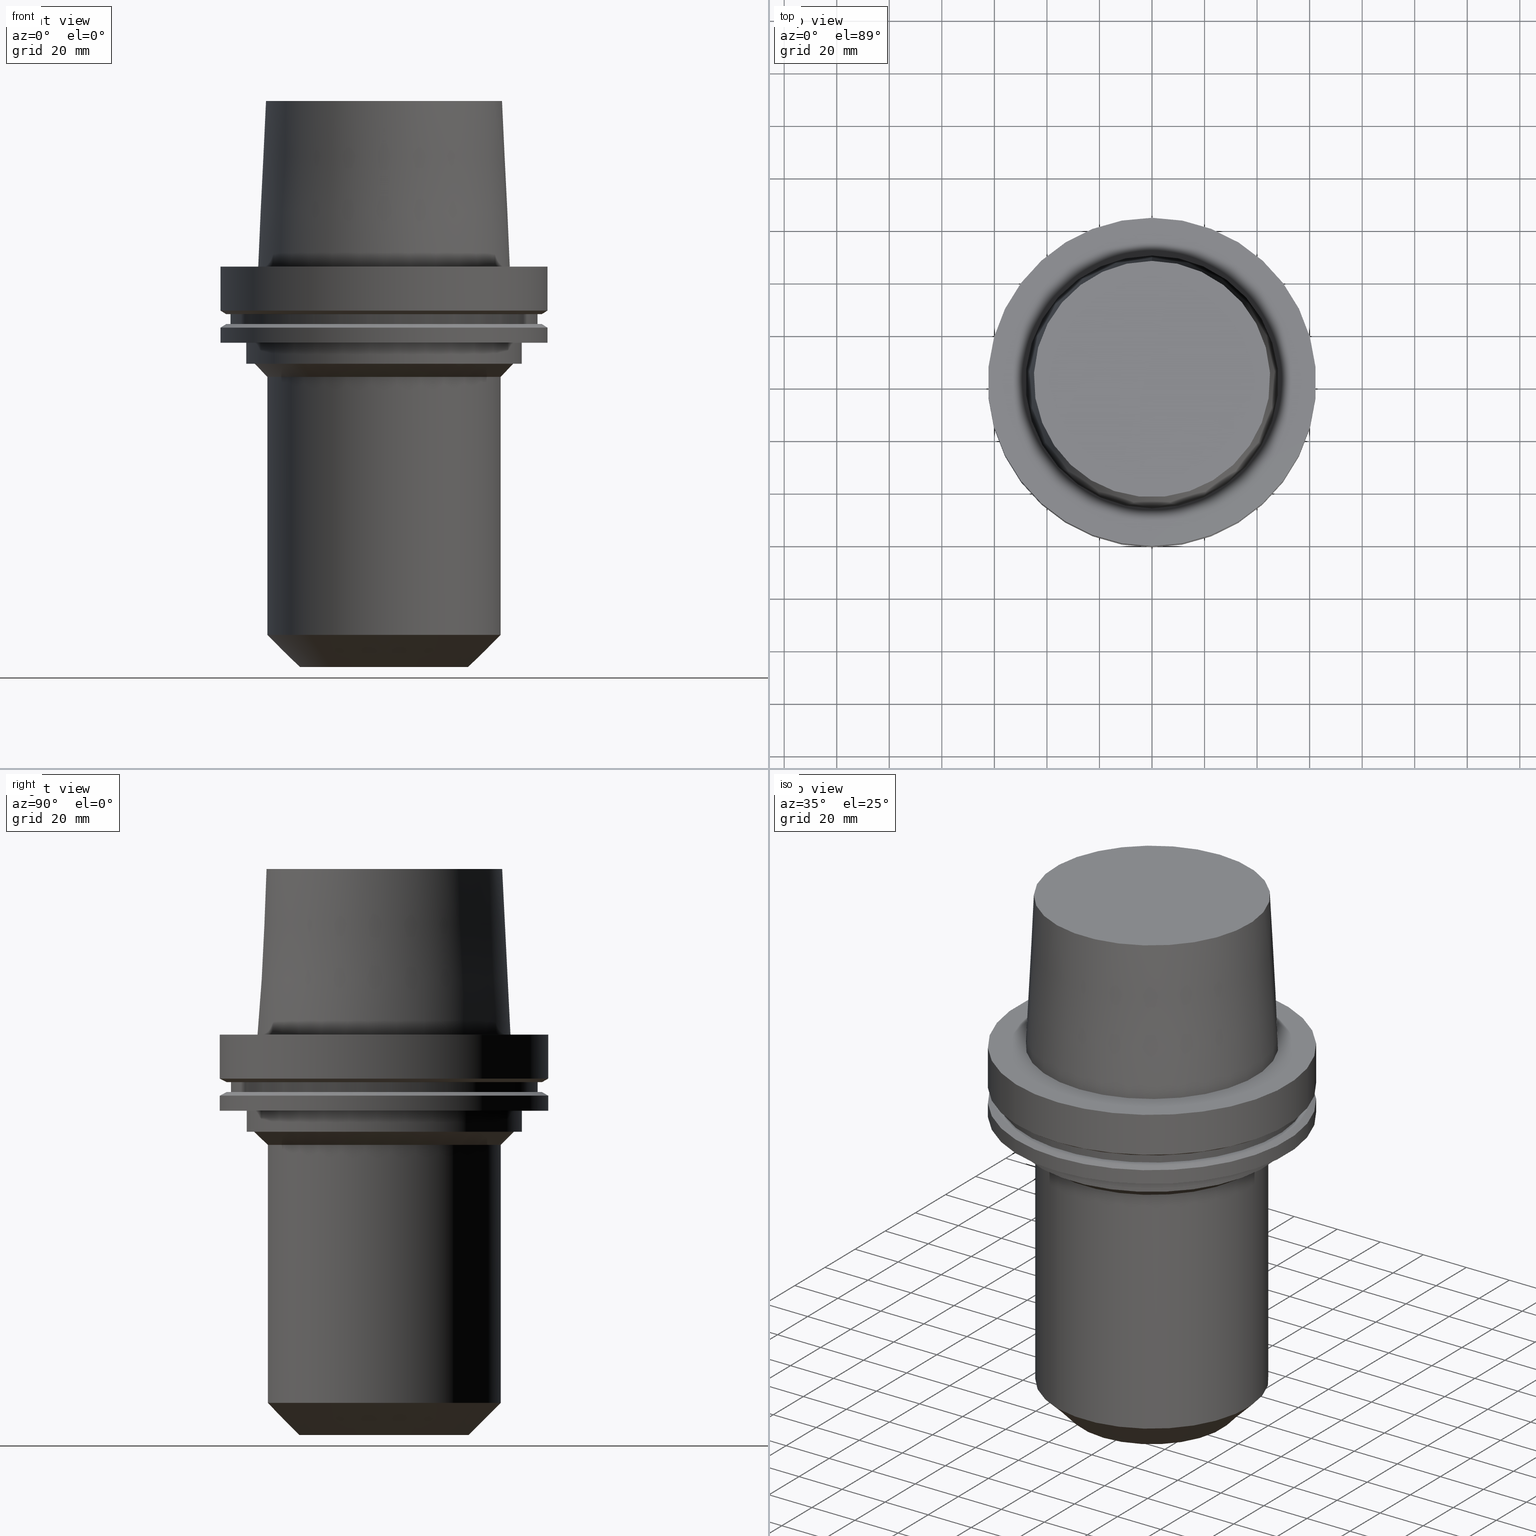
[diagram: canonical four-view strip — front | top / right | iso, engineering-drawing reading convention]
A machine part, canonical four-view strip (front | top / right | iso — engineering-drawing reading convention). The complete STEP part file that produces these views, byte-faithful:
ISO-10303-21;
HEADER;
FILE_DESCRIPTION((''),'1');
FILE_NAME('V:/02_3D_Field-HP\X2\FF71FF6FFF8CFF9F5916\X0\2013/02_Step_Field-HP\X2\FF71FF6FFF8CFF9F5916\X0\2013/HSK-A125-EM2.000-6.stp','2017-07-11T00:42:44',(''),(''),'Spatial Interop R21 SP3','Kubotek KeyCreator 2011 V10.0.2 (22737)',' ');
FILE_SCHEMA(('automotive_design'));
ENDSEC;
DATA;
#1=MECHANICAL_DESIGN_GEOMETRIC_PRESENTATION_REPRESENTATION(' ',(#10,#11,#12,#13,#14,#15,#16,#17,#18,#19,#20,#21,#22,#23,#24,#25,#26,#27,#28,#29,#30,#31,#32,#33,#34,#35,#36,#37,#38,#39,#40,#41,#42,#43),#6);
#2=PRODUCT_DEFINITION_CONTEXT('',#44,'design');
#3=APPLICATION_PROTOCOL_DEFINITION('INTERNATIONAL STANDARD','automotive_design',1994,#44);
#4=PRODUCT_CATEGORY_RELATIONSHIP('NONE','NONE',#45,#46);
#5=SHAPE_DEFINITION_REPRESENTATION(#47,#48);
#6= (GEOMETRIC_REPRESENTATION_CONTEXT(3)GLOBAL_UNCERTAINTY_ASSIGNED_CONTEXT((#51))GLOBAL_UNIT_ASSIGNED_CONTEXT((#53,#54,#55))REPRESENTATION_CONTEXT('NONE','WORKSPACE'));
#10=STYLED_ITEM('',(#57,#58),#59);
#11=STYLED_ITEM('',(#60),#61);
#12=STYLED_ITEM('',(#62),#63);
#13=STYLED_ITEM('',(#64),#65);
#14=STYLED_ITEM('',(#66,#67),#68);
#15=STYLED_ITEM('',(#69),#70);
#16=STYLED_ITEM('',(#71,#72),#73);
#17=STYLED_ITEM('',(#74),#75);
#18=STYLED_ITEM('',(#76,#77),#78);
#19=STYLED_ITEM('',(#79),#80);
#20=STYLED_ITEM('',(#81),#82);
#21=STYLED_ITEM('',(#83,#84),#85);
#22=STYLED_ITEM('',(#86),#87);
#23=STYLED_ITEM('',(#88,#89),#90);
#24=STYLED_ITEM('',(#91),#92);
#25=STYLED_ITEM('',(#93),#94);
#26=STYLED_ITEM('',(#95,#96),#97);
#27=STYLED_ITEM('',(#98,#99),#100);
#28=STYLED_ITEM('',(#101,#102),#103);
#29=STYLED_ITEM('',(#104,#105),#106);
#30=STYLED_ITEM('',(#107,#108),#109);
#31=STYLED_ITEM('',(#110),#111);
#32=STYLED_ITEM('',(#112,#113),#114);
#33=STYLED_ITEM('',(#115),#116);
#34=STYLED_ITEM('',(#117,#118),#119);
#35=STYLED_ITEM('',(#120,#121),#122);
#36=STYLED_ITEM('',(#123),#124);
#37=STYLED_ITEM('',(#125),#126);
#38=STYLED_ITEM('',(#127),#128);
#39=STYLED_ITEM('',(#129),#130);
#40=STYLED_ITEM('',(#131,#132),#133);
#41=STYLED_ITEM('',(#134,#135),#136);
#42=STYLED_ITEM('',(#137,#138),#139);
#43=STYLED_ITEM('',(#140,#141),#142);
#44=APPLICATION_CONTEXT(' ');
#45=PRODUCT_CATEGORY('part','NONE');
#46=PRODUCT_RELATED_PRODUCT_CATEGORY('detail',' ',(#143));
#47=PRODUCT_DEFINITION_SHAPE('NONE','NONE',#144);
#48=ADVANCED_BREP_SHAPE_REPRESENTATION('Unnamed[1]',(#59,#145),#6);
#51=UNCERTAINTY_MEASURE_WITH_UNIT(LENGTH_MEASURE(1.0E-006),#53,'','');
#53= (CONVERSION_BASED_UNIT('MILLIMETRE',#148)LENGTH_UNIT()NAMED_UNIT(#151));
#54= (NAMED_UNIT(#153)PLANE_ANGLE_UNIT()SI_UNIT($,.RADIAN.));
#55= (NAMED_UNIT(#153)SOLID_ANGLE_UNIT()SI_UNIT($,.STERADIAN.));
#57=PRESENTATION_STYLE_ASSIGNMENT((#159));
#58=PRESENTATION_STYLE_ASSIGNMENT((#160));
#59=MANIFOLD_SOLID_BREP('Unnamed[1]',#161);
#60=PRESENTATION_STYLE_ASSIGNMENT((#162));
#61=EDGE_CURVE('Unnamed[1]',#163,#163,#164,.T.);
#62=PRESENTATION_STYLE_ASSIGNMENT((#165));
#63=EDGE_CURVE('Unnamed[1]',#166,#166,#167,.T.);
#64=PRESENTATION_STYLE_ASSIGNMENT((#168));
#65=EDGE_CURVE('Unnamed[1]',#169,#169,#170,.T.);
#66=PRESENTATION_STYLE_ASSIGNMENT((#171));
#67=PRESENTATION_STYLE_ASSIGNMENT((#172));
#68=ADVANCED_FACE('Unnamed[1]',(#173,#174),#175,.T.);
#69=PRESENTATION_STYLE_ASSIGNMENT((#176));
#70=EDGE_CURVE('Unnamed[1]',#177,#177,#178,.T.);
#71=PRESENTATION_STYLE_ASSIGNMENT((#179));
#72=PRESENTATION_STYLE_ASSIGNMENT((#180));
#73=ADVANCED_FACE('Unnamed[1]',(#181,#182),#183,.T.);
#74=PRESENTATION_STYLE_ASSIGNMENT((#184));
#75=EDGE_CURVE('Unnamed[1]',#185,#185,#186,.T.);
#76=PRESENTATION_STYLE_ASSIGNMENT((#187));
#77=PRESENTATION_STYLE_ASSIGNMENT((#188));
#78=ADVANCED_FACE('Unnamed[1]',(#189,#190),#191,.T.);
#79=PRESENTATION_STYLE_ASSIGNMENT((#192));
#80=EDGE_CURVE('Unnamed[1]',#193,#193,#194,.T.);
#81=PRESENTATION_STYLE_ASSIGNMENT((#195));
#82=EDGE_CURVE('Unnamed[1]',#196,#196,#197,.T.);
#83=PRESENTATION_STYLE_ASSIGNMENT((#198));
#84=PRESENTATION_STYLE_ASSIGNMENT((#199));
#85=ADVANCED_FACE('Unnamed[1]',(#200,#201),#202,.T.);
#86=PRESENTATION_STYLE_ASSIGNMENT((#203));
#87=EDGE_CURVE('Unnamed[1]',#204,#204,#205,.T.);
#88=PRESENTATION_STYLE_ASSIGNMENT((#206));
#89=PRESENTATION_STYLE_ASSIGNMENT((#207));
#90=ADVANCED_FACE('Unnamed[1]',(#208,#209),#210,.T.);
#91=PRESENTATION_STYLE_ASSIGNMENT((#211));
#92=EDGE_CURVE('Unnamed[1]',#212,#212,#213,.T.);
#93=PRESENTATION_STYLE_ASSIGNMENT((#214));
#94=EDGE_CURVE('Unnamed[1]',#215,#215,#216,.T.);
#95=PRESENTATION_STYLE_ASSIGNMENT((#217));
#96=PRESENTATION_STYLE_ASSIGNMENT((#218));
#97=ADVANCED_FACE('Unnamed[1]',(#219,#220),#221,.T.);
#98=PRESENTATION_STYLE_ASSIGNMENT((#222));
#99=PRESENTATION_STYLE_ASSIGNMENT((#223));
#100=ADVANCED_FACE('Unnamed[1]',(#224,#225),#226,.T.);
#101=PRESENTATION_STYLE_ASSIGNMENT((#227));
#102=PRESENTATION_STYLE_ASSIGNMENT((#228));
#103=ADVANCED_FACE('Unnamed[1]',(#229,#230),#231,.T.);
#104=PRESENTATION_STYLE_ASSIGNMENT((#232));
#105=PRESENTATION_STYLE_ASSIGNMENT((#233));
#106=ADVANCED_FACE('Unnamed[1]',(#234,#235),#236,.T.);
#107=PRESENTATION_STYLE_ASSIGNMENT((#237));
#108=PRESENTATION_STYLE_ASSIGNMENT((#238));
#109=ADVANCED_FACE('Unnamed[1]',(#239,#240),#241,.T.);
#110=PRESENTATION_STYLE_ASSIGNMENT((#242));
#111=EDGE_CURVE('Unnamed[1]',#243,#243,#244,.T.);
#112=PRESENTATION_STYLE_ASSIGNMENT((#245));
#113=PRESENTATION_STYLE_ASSIGNMENT((#246));
#114=ADVANCED_FACE('Unnamed[1]',(#247),#248,.T.);
#115=PRESENTATION_STYLE_ASSIGNMENT((#249));
#116=EDGE_CURVE('Unnamed[1]',#250,#250,#251,.T.);
#117=PRESENTATION_STYLE_ASSIGNMENT((#252));
#118=PRESENTATION_STYLE_ASSIGNMENT((#253));
#119=ADVANCED_FACE('Unnamed[1]',(#254),#255,.T.);
#120=PRESENTATION_STYLE_ASSIGNMENT((#256));
#121=PRESENTATION_STYLE_ASSIGNMENT((#257));
#122=ADVANCED_FACE('Unnamed[1]',(#258,#259),#260,.T.);
#123=PRESENTATION_STYLE_ASSIGNMENT((#261));
#124=EDGE_CURVE('Unnamed[1]',#262,#262,#263,.T.);
#125=PRESENTATION_STYLE_ASSIGNMENT((#264));
#126=EDGE_CURVE('Unnamed[1]',#265,#265,#266,.T.);
#127=PRESENTATION_STYLE_ASSIGNMENT((#267));
#128=EDGE_CURVE('Unnamed[1]',#268,#268,#269,.T.);
#129=PRESENTATION_STYLE_ASSIGNMENT((#270));
#130=EDGE_CURVE('Unnamed[1]',#271,#271,#272,.T.);
#131=PRESENTATION_STYLE_ASSIGNMENT((#273));
#132=PRESENTATION_STYLE_ASSIGNMENT((#274));
#133=ADVANCED_FACE('Unnamed[1]',(#275,#276),#277,.T.);
#134=PRESENTATION_STYLE_ASSIGNMENT((#278));
#135=PRESENTATION_STYLE_ASSIGNMENT((#279));
#136=ADVANCED_FACE('Unnamed[1]',(#280,#281),#282,.T.);
#137=PRESENTATION_STYLE_ASSIGNMENT((#283));
#138=PRESENTATION_STYLE_ASSIGNMENT((#284));
#139=ADVANCED_FACE('Unnamed[1]',(#285,#286),#287,.T.);
#140=PRESENTATION_STYLE_ASSIGNMENT((#288));
#141=PRESENTATION_STYLE_ASSIGNMENT((#289));
#142=ADVANCED_FACE('Unnamed[1]',(#290,#291),#292,.T.);
#143=PRODUCT('Unnamed[1]','Unnamed[1]','PART-Unnamed[1]-DESC',(#293));
#144=PRODUCT_DEFINITION('NONE','NONE',#294,#2);
#145=AXIS2_PLACEMENT_3D('',#295,#296,#297);
#148=LENGTH_MEASURE_WITH_UNIT(LENGTH_MEASURE(1.0),#298);
#151=DIMENSIONAL_EXPONENTS(1.0,0.0,0.0,0.0,0.0,0.0,0.0);
#153=DIMENSIONAL_EXPONENTS(0.0,0.0,0.0,0.0,0.0,0.0,0.0);
#159=SURFACE_STYLE_USAGE(.BOTH.,#299);
#160=CURVE_STYLE('',#300,POSITIVE_LENGTH_MEASURE(1000.0),#301);
#161=CLOSED_SHELL('',(#119,#103,#73,#122,#85,#68,#97,#136,#139,#133,#78,#109,#90,#106,#142,#100,#114));
#162=CURVE_STYLE('',#302,POSITIVE_LENGTH_MEASURE(1000.0),#303);
#163=VERTEX_POINT('',#304);
#164=CIRCLE('',#305,62.5);
#165=CURVE_STYLE('',#306,POSITIVE_LENGTH_MEASURE(1000.0),#307);
#166=VERTEX_POINT('',#308);
#167=CIRCLE('',#309,32.2500000000003);
#168=CURVE_STYLE('',#310,POSITIVE_LENGTH_MEASURE(1000.0),#311);
#169=VERTEX_POINT('',#312);
#170=CIRCLE('',#313,62.5);
#171=SURFACE_STYLE_USAGE(.BOTH.,#314);
#172=CURVE_STYLE('',#315,POSITIVE_LENGTH_MEASURE(1000.0),#316);
#173=FACE_BOUND('',#317,.T.);
#174=FACE_OUTER_BOUND('',#318,.T.);
#175=PLANE('',#319);
#176=CURVE_STYLE('',#320,POSITIVE_LENGTH_MEASURE(1000.0),#321);
#177=VERTEX_POINT('',#322);
#178=CIRCLE('',#323,58.5);
#179=SURFACE_STYLE_USAGE(.BOTH.,#324);
#180=CURVE_STYLE('',#325,POSITIVE_LENGTH_MEASURE(1000.0),#326);
#181=FACE_OUTER_BOUND('',#327,.T.);
#182=FACE_BOUND('',#328,.T.);
#183=PLANE('',#329);
#184=CURVE_STYLE('',#330,POSITIVE_LENGTH_MEASURE(1000.0),#331);
#185=VERTEX_POINT('',#332);
#186=CIRCLE('',#333,60.1225952641912);
#187=SURFACE_STYLE_USAGE(.BOTH.,#334);
#188=CURVE_STYLE('',#335,POSITIVE_LENGTH_MEASURE(1000.0),#336);
#189=FACE_BOUND('',#337,.T.);
#190=FACE_OUTER_BOUND('',#338,.T.);
#191=PLANE('',#339);
#192=CURVE_STYLE('',#340,POSITIVE_LENGTH_MEASURE(1000.0),#341);
#193=VERTEX_POINT('',#342);
#194=CIRCLE('',#343,44.9779398797591);
#195=CURVE_STYLE('',#344,POSITIVE_LENGTH_MEASURE(1000.0),#345);
#196=VERTEX_POINT('',#346);
#197=CIRCLE('',#347,52.4999999999998);
#198=SURFACE_STYLE_USAGE(.BOTH.,#348);
#199=CURVE_STYLE('',#349,POSITIVE_LENGTH_MEASURE(1000.0),#350);
#200=FACE_BOUND('',#351,.T.);
#201=FACE_BOUND('',#352,.T.);
#202=CONICAL_SURFACE('',#353,61.3112976320956,1.04719755119668);
#203=CURVE_STYLE('',#354,POSITIVE_LENGTH_MEASURE(1000.0),#355);
#204=VERTEX_POINT('',#356);
#205=CIRCLE('',#357,62.5);
#206=SURFACE_STYLE_USAGE(.BOTH.,#358);
#207=CURVE_STYLE('',#359,POSITIVE_LENGTH_MEASURE(1000.0),#360);
#208=FACE_BOUND('',#361,.T.);
#209=FACE_OUTER_BOUND('',#362,.T.);
#210=PLANE('',#363);
#211=CURVE_STYLE('',#364,POSITIVE_LENGTH_MEASURE(1000.0),#365);
#212=VERTEX_POINT('',#366);
#213=CIRCLE('',#367,60.122595264194);
#214=CURVE_STYLE('',#368,POSITIVE_LENGTH_MEASURE(1000.0),#369);
#215=VERTEX_POINT('',#370);
#216=CIRCLE('',#371,49.4499999999999);
#217=SURFACE_STYLE_USAGE(.BOTH.,#372);
#218=CURVE_STYLE('',#373,POSITIVE_LENGTH_MEASURE(1000.0),#374);
#219=FACE_BOUND('',#375,.T.);
#220=FACE_BOUND('',#376,.T.);
#221=CYLINDRICAL_SURFACE('',#377,58.4999999999999);
#222=SURFACE_STYLE_USAGE(.BOTH.,#378);
#223=CURVE_STYLE('',#379,POSITIVE_LENGTH_MEASURE(1000.0),#380);
#224=FACE_BOUND('',#381,.T.);
#225=FACE_BOUND('',#382,.T.);
#226=CONICAL_SURFACE('',#383,38.3500000000003,0.785398163397445);
#227=SURFACE_STYLE_USAGE(.BOTH.,#384);
#228=CURVE_STYLE('',#385,POSITIVE_LENGTH_MEASURE(1000.0),#386);
#229=FACE_BOUND('',#387,.T.);
#230=FACE_BOUND('',#388,.T.);
#231=CONICAL_SURFACE('',#389,46.5560961923844,0.0500583457465964);
#232=SURFACE_STYLE_USAGE(.BOTH.,#390);
#233=CURVE_STYLE('',#391,POSITIVE_LENGTH_MEASURE(1000.0),#392);
#234=FACE_BOUND('',#393,.T.);
#235=FACE_BOUND('',#394,.T.);
#236=CONICAL_SURFACE('',#395,46.95,0.785398163397456);
#237=SURFACE_STYLE_USAGE(.BOTH.,#396);
#238=CURVE_STYLE('',#397,POSITIVE_LENGTH_MEASURE(1000.0),#398);
#239=FACE_BOUND('',#399,.T.);
#240=FACE_BOUND('',#400,.T.);
#241=CYLINDRICAL_SURFACE('',#401,52.5);
#242=CURVE_STYLE('',#402,POSITIVE_LENGTH_MEASURE(1000.0),#403);
#243=VERTEX_POINT('',#404);
#244=CIRCLE('',#405,58.4999999999998);
#245=SURFACE_STYLE_USAGE(.BOTH.,#406);
#246=CURVE_STYLE('',#407,POSITIVE_LENGTH_MEASURE(1000.0),#408);
#247=FACE_OUTER_BOUND('',#409,.T.);
#248=PLANE('',#410);
#249=CURVE_STYLE('',#411,POSITIVE_LENGTH_MEASURE(1000.0),#412);
#250=VERTEX_POINT('',#413);
#251=CIRCLE('',#414,44.4500000000002);
#252=SURFACE_STYLE_USAGE(.BOTH.,#415);
#253=CURVE_STYLE('',#416,POSITIVE_LENGTH_MEASURE(1000.0),#417);
#254=FACE_OUTER_BOUND('',#418,.T.);
#255=PLANE('',#419);
#256=SURFACE_STYLE_USAGE(.BOTH.,#420);
#257=CURVE_STYLE('',#421,POSITIVE_LENGTH_MEASURE(1000.0),#422);
#258=FACE_BOUND('',#423,.T.);
#259=FACE_BOUND('',#424,.T.);
#260=CYLINDRICAL_SURFACE('',#425,62.5000000000001);
#261=CURVE_STYLE('',#426,POSITIVE_LENGTH_MEASURE(1000.0),#427);
#262=VERTEX_POINT('',#428);
#263=CIRCLE('',#429,48.1342525050097);
#264=CURVE_STYLE('',#430,POSITIVE_LENGTH_MEASURE(1000.0),#431);
#265=VERTEX_POINT('',#432);
#266=CIRCLE('',#433,52.5000000000003);
#267=CURVE_STYLE('',#434,POSITIVE_LENGTH_MEASURE(1000.0),#435);
#268=VERTEX_POINT('',#436);
#269=CIRCLE('',#437,44.4500000000003);
#270=CURVE_STYLE('',#438,POSITIVE_LENGTH_MEASURE(1000.0),#439);
#271=VERTEX_POINT('',#440);
#272=CIRCLE('',#441,62.5000000000002);
#273=SURFACE_STYLE_USAGE(.BOTH.,#442);
#274=CURVE_STYLE('',#443,POSITIVE_LENGTH_MEASURE(1000.0),#444);
#275=FACE_BOUND('',#445,.T.);
#276=FACE_BOUND('',#446,.T.);
#277=CYLINDRICAL_SURFACE('',#447,62.5);
#278=SURFACE_STYLE_USAGE(.BOTH.,#448);
#279=CURVE_STYLE('',#449,POSITIVE_LENGTH_MEASURE(1000.0),#450);
#280=FACE_OUTER_BOUND('',#451,.T.);
#281=FACE_BOUND('',#452,.T.);
#282=PLANE('',#453);
#283=SURFACE_STYLE_USAGE(.BOTH.,#454);
#284=CURVE_STYLE('',#455,POSITIVE_LENGTH_MEASURE(1000.0),#456);
#285=FACE_BOUND('',#457,.T.);
#286=FACE_BOUND('',#458,.T.);
#287=CONICAL_SURFACE('',#459,61.311297632097,1.04719755119646);
#288=SURFACE_STYLE_USAGE(.BOTH.,#460);
#289=CURVE_STYLE('',#461,POSITIVE_LENGTH_MEASURE(1000.0),#462);
#290=FACE_BOUND('',#463,.T.);
#291=FACE_BOUND('',#464,.T.);
#292=CYLINDRICAL_SURFACE('',#465,44.4500000000002);
#293=PRODUCT_CONTEXT('',#44,'mechanical');
#294=PRODUCT_DEFINITION_FORMATION_WITH_SPECIFIED_SOURCE(' ','NONE',#143,.NOT_KNOWN.);
#295=CARTESIAN_POINT('',(0.0,0.0,0.0));
#296=DIRECTION('',(0.0,0.0,1.0));
#297=DIRECTION('',(1.0,0.0,0.0));
#298= (NAMED_UNIT(#151)LENGTH_UNIT()SI_UNIT(.MILLI.,.METRE.));
#299=SURFACE_SIDE_STYLE('',(#467));
#300=DRAUGHTING_PRE_DEFINED_CURVE_FONT('continuous');
#301=COLOUR_RGB('',0.0,1.0,0.0);
#302=DRAUGHTING_PRE_DEFINED_CURVE_FONT('continuous');
#303=COLOUR_RGB('',0.0,1.0,0.0);
#304=CARTESIAN_POINT('',(1.77573785876367E-015,62.5,-29.0000000000001));
#305=AXIS2_PLACEMENT_3D('',#468,#469,#470);
#306=DRAUGHTING_PRE_DEFINED_CURVE_FONT('continuous');
#307=COLOUR_RGB('',0.0,1.0,0.0);
#308=CARTESIAN_POINT('',(9.33180860950283E-015,32.2500000000004,-152.4));
#309=AXIS2_PLACEMENT_3D('',#471,#472,#473);
#310=DRAUGHTING_PRE_DEFINED_CURVE_FONT('continuous');
#311=COLOUR_RGB('',0.0,1.0,0.0);
#312=CARTESIAN_POINT('',(1.02578894188644E-015,62.5,-16.7524047358084));
#313=AXIS2_PLACEMENT_3D('',#474,#475,#476);
#314=SURFACE_SIDE_STYLE('',(#477));
#315=DRAUGHTING_PRE_DEFINED_CURVE_FONT('continuous');
#316=COLOUR_RGB('',0.0,1.0,0.0);
#317=EDGE_LOOP('',(#478));
#318=EDGE_LOOP('',(#479));
#319=AXIS2_PLACEMENT_3D('',#480,#481,#482);
#320=DRAUGHTING_PRE_DEFINED_CURVE_FONT('continuous');
#321=COLOUR_RGB('',0.0,1.0,0.0);
#322=CARTESIAN_POINT('',(1.10983616172739E-015,58.5,-18.1250000000017));
#323=AXIS2_PLACEMENT_3D('',#483,#484,#485);
#324=SURFACE_SIDE_STYLE('',(#486));
#325=DRAUGHTING_PRE_DEFINED_CURVE_FONT('continuous');
#326=COLOUR_RGB('',0.0,1.0,0.0);
#327=EDGE_LOOP('',(#487));
#328=EDGE_LOOP('',(#488));
#329=AXIS2_PLACEMENT_3D('',#489,#490,#491);
#330=DRAUGHTING_PRE_DEFINED_CURVE_FONT('continuous');
#331=COLOUR_RGB('',0.0,1.0,0.0);
#332=CARTESIAN_POINT('',(1.10983616172729E-015,60.1225952641912,-18.1250000000001));
#333=AXIS2_PLACEMENT_3D('',#492,#493,#494);
#334=SURFACE_SIDE_STYLE('',(#495));
#335=DRAUGHTING_PRE_DEFINED_CURVE_FONT('continuous');
#336=COLOUR_RGB('',0.0,1.0,0.0);
#337=EDGE_LOOP('',(#496));
#338=EDGE_LOOP('',(#497));
#339=AXIS2_PLACEMENT_3D('',#498,#499,#500);
#340=DRAUGHTING_PRE_DEFINED_CURVE_FONT('continuous');
#341=COLOUR_RGB('',0.0,1.0,0.0);
#342=CARTESIAN_POINT('',(-3.85763741731416E-015,44.9779398797591,62.9999999999999));
#343=AXIS2_PLACEMENT_3D('',#501,#502,#503);
#344=DRAUGHTING_PRE_DEFINED_CURVE_FONT('continuous');
#345=COLOUR_RGB('',0.0,1.0,0.0);
#346=CARTESIAN_POINT('',(2.26559657842261E-015,52.4999999999998,-37.0000000000001));
#347=AXIS2_PLACEMENT_3D('',#504,#505,#506);
#348=SURFACE_SIDE_STYLE('',(#507));
#349=DRAUGHTING_PRE_DEFINED_CURVE_FONT('continuous');
#350=COLOUR_RGB('',0.0,1.0,0.0);
#351=EDGE_LOOP('',(#508));
#352=EDGE_LOOP('',(#509));
#353=AXIS2_PLACEMENT_3D('',#510,#511,#512);
#354=DRAUGHTING_PRE_DEFINED_CURVE_FONT('continuous');
#355=COLOUR_RGB('',0.0,1.0,0.0);
#356=CARTESIAN_POINT('',(1.42350465640827E-015,62.5,-23.2475952641916));
#357=AXIS2_PLACEMENT_3D('',#513,#514,#515);
#358=SURFACE_SIDE_STYLE('',(#516));
#359=DRAUGHTING_PRE_DEFINED_CURVE_FONT('continuous');
#360=COLOUR_RGB('',0.0,1.0,0.0);
#361=EDGE_LOOP('',(#517));
#362=EDGE_LOOP('',(#518));
#363=AXIS2_PLACEMENT_3D('',#519,#520,#521);
#364=DRAUGHTING_PRE_DEFINED_CURVE_FONT('continuous');
#365=COLOUR_RGB('',0.0,1.0,0.0);
#366=CARTESIAN_POINT('',(1.33945743656747E-015,60.122595264194,-21.8750000000009));
#367=AXIS2_PLACEMENT_3D('',#522,#523,#524);
#368=DRAUGHTING_PRE_DEFINED_CURVE_FONT('continuous');
#369=COLOUR_RGB('',0.0,1.0,0.0);
#370=CARTESIAN_POINT('',(2.26559657842261E-015,49.4499999999999,-37.0000000000001));
#371=AXIS2_PLACEMENT_3D('',#525,#526,#527);
#372=SURFACE_SIDE_STYLE('',(#528));
#373=DRAUGHTING_PRE_DEFINED_CURVE_FONT('continuous');
#374=COLOUR_RGB('',0.0,1.0,0.0);
#375=EDGE_LOOP('',(#529));
#376=EDGE_LOOP('',(#530));
#377=AXIS2_PLACEMENT_3D('',#531,#532,#533);
#378=SURFACE_SIDE_STYLE('',(#534));
#379=DRAUGHTING_PRE_DEFINED_CURVE_FONT('continuous');
#380=COLOUR_RGB('',0.0,1.0,0.0);
#381=EDGE_LOOP('',(#535));
#382=EDGE_LOOP('',(#536));
#383=AXIS2_PLACEMENT_3D('',#537,#538,#539);
#384=SURFACE_SIDE_STYLE('',(#540));
#385=DRAUGHTING_PRE_DEFINED_CURVE_FONT('continuous');
#386=COLOUR_RGB('',0.0,1.0,0.0);
#387=EDGE_LOOP('',(#541));
#388=EDGE_LOOP('',(#542));
#389=AXIS2_PLACEMENT_3D('',#543,#544,#545);
#390=SURFACE_SIDE_STYLE('',(#546));
#391=DRAUGHTING_PRE_DEFINED_CURVE_FONT('continuous');
#392=COLOUR_RGB('',0.0,1.0,0.0);
#393=EDGE_LOOP('',(#547));
#394=EDGE_LOOP('',(#548));
#395=AXIS2_PLACEMENT_3D('',#549,#550,#551);
#396=SURFACE_SIDE_STYLE('',(#552));
#397=DRAUGHTING_PRE_DEFINED_CURVE_FONT('continuous');
#398=COLOUR_RGB('',0.0,1.0,0.0);
#399=EDGE_LOOP('',(#553));
#400=EDGE_LOOP('',(#554));
#401=AXIS2_PLACEMENT_3D('',#555,#556,#557);
#402=DRAUGHTING_PRE_DEFINED_CURVE_FONT('continuous');
#403=COLOUR_RGB('',0.0,1.0,0.0);
#404=CARTESIAN_POINT('',(1.33945743656732E-015,58.4999999999998,-21.8749999999984));
#405=AXIS2_PLACEMENT_3D('',#558,#559,#560);
#406=SURFACE_SIDE_STYLE('',(#561));
#407=DRAUGHTING_PRE_DEFINED_CURVE_FONT('continuous');
#408=COLOUR_RGB('',0.0,1.0,0.0);
#409=EDGE_LOOP('',(#562));
#410=AXIS2_PLACEMENT_3D('',#563,#564,#565);
#411=DRAUGHTING_PRE_DEFINED_CURVE_FONT('continuous');
#412=COLOUR_RGB('',0.0,1.0,0.0);
#413=CARTESIAN_POINT('',(2.57175827820943E-015,44.4500000000002,-41.9999999999998));
#414=AXIS2_PLACEMENT_3D('',#566,#567,#568);
#415=SURFACE_SIDE_STYLE('',(#569));
#416=DRAUGHTING_PRE_DEFINED_CURVE_FONT('continuous');
#417=COLOUR_RGB('',0.0,1.0,0.0);
#418=EDGE_LOOP('',(#570));
#419=AXIS2_PLACEMENT_3D('',#571,#572,#573);
#420=SURFACE_SIDE_STYLE('',(#574));
#421=DRAUGHTING_PRE_DEFINED_CURVE_FONT('continuous');
#422=COLOUR_RGB('',0.0,1.0,0.0);
#423=EDGE_LOOP('',(#575));
#424=EDGE_LOOP('',(#576));
#425=AXIS2_PLACEMENT_3D('',#577,#578,#579);
#426=DRAUGHTING_PRE_DEFINED_CURVE_FONT('continuous');
#427=COLOUR_RGB('',0.0,1.0,0.0);
#428=CARTESIAN_POINT('',(3.88342032297484E-029,48.1342525050097,-6.38005254174039E-013));
#429=AXIS2_PLACEMENT_3D('',#580,#581,#582);
#430=DRAUGHTING_PRE_DEFINED_CURVE_FONT('continuous');
#431=COLOUR_RGB('',0.0,1.0,0.0);
#432=CARTESIAN_POINT('',(1.77573785876367E-015,52.5000000000003,-29.0000000000001));
#433=AXIS2_PLACEMENT_3D('',#583,#584,#585);
#434=DRAUGHTING_PRE_DEFINED_CURVE_FONT('continuous');
#435=COLOUR_RGB('',0.0,1.0,0.0);
#436=CARTESIAN_POINT('',(8.58477406202295E-015,44.4500000000003,-140.2));
#437=AXIS2_PLACEMENT_3D('',#586,#587,#588);
#438=DRAUGHTING_PRE_DEFINED_CURVE_FONT('continuous');
#439=COLOUR_RGB('',0.0,1.0,0.0);
#440=CARTESIAN_POINT('',(-5.58935713239973E-030,62.5000000000002,8.63540424946709E-014));
#441=AXIS2_PLACEMENT_3D('',#589,#590,#591);
#442=SURFACE_SIDE_STYLE('',(#592));
#443=DRAUGHTING_PRE_DEFINED_CURVE_FONT('continuous');
#444=COLOUR_RGB('',0.0,1.0,0.0);
#445=EDGE_LOOP('',(#593));
#446=EDGE_LOOP('',(#594));
#447=AXIS2_PLACEMENT_3D('',#595,#596,#597);
#448=SURFACE_SIDE_STYLE('',(#598));
#449=DRAUGHTING_PRE_DEFINED_CURVE_FONT('continuous');
#450=COLOUR_RGB('',0.0,1.0,0.0);
#451=EDGE_LOOP('',(#599));
#452=EDGE_LOOP('',(#600));
#453=AXIS2_PLACEMENT_3D('',#601,#602,#603);
#454=SURFACE_SIDE_STYLE('',(#604));
#455=DRAUGHTING_PRE_DEFINED_CURVE_FONT('continuous');
#456=COLOUR_RGB('',0.0,1.0,0.0);
#457=EDGE_LOOP('',(#605));
#458=EDGE_LOOP('',(#606));
#459=AXIS2_PLACEMENT_3D('',#607,#608,#609);
#460=SURFACE_SIDE_STYLE('',(#610));
#461=DRAUGHTING_PRE_DEFINED_CURVE_FONT('continuous');
#462=COLOUR_RGB('',0.0,1.0,0.0);
#463=EDGE_LOOP('',(#611));
#464=EDGE_LOOP('',(#612));
#465=AXIS2_PLACEMENT_3D('',#613,#614,#615);
#467=SURFACE_STYLE_FILL_AREA(#616);
#468=CARTESIAN_POINT('',(1.77573785876367E-015,3.55147571752733E-015,-29.0000000000001));
#469=DIRECTION('',(6.12323399573677E-017,1.22464679914723E-016,-1.0));
#470=DIRECTION('',(-1.23259516440783E-032,1.0,1.22464679914723E-016));
#471=CARTESIAN_POINT('',(9.33180860950283E-015,1.86636172190057E-014,-152.4));
#472=DIRECTION('',(6.12323399573676E-017,1.22464679914704E-016,-1.0));
#473=DIRECTION('',(-1.23259516440782E-032,1.0,1.22464679914704E-016));
#474=CARTESIAN_POINT('',(1.02578894188644E-015,2.05157788377287E-015,-16.7524047358084));
#475=DIRECTION('',(6.12323399573676E-017,1.22464679914723E-016,-1.0));
#476=DIRECTION('',(-1.23259516440783E-032,1.0,1.22464679914723E-016));
#477=SURFACE_STYLE_FILL_AREA(#617);
#478=ORIENTED_EDGE('',*,*,#70,.F.);
#479=ORIENTED_EDGE('',*,*,#75,.T.);
#480=CARTESIAN_POINT('',(1.10983616172734E-015,59.3112976320956,-18.1250000000009));
#481=DIRECTION('',(6.12323399573677E-017,9.85408931824386E-013,-1.0));
#482=DIRECTION('',(-6.03437218632281E-029,1.0,9.85408931824386E-013));
#483=CARTESIAN_POINT('',(1.10983616172739E-015,2.21967232345478E-015,-18.1250000000017));
#484=DIRECTION('',(6.12323399573677E-017,1.22464679914762E-016,-1.0));
#485=DIRECTION('',(-1.23259516440783E-032,1.0,1.22464679914762E-016));
#486=SURFACE_STYLE_FILL_AREA(#618);
#487=ORIENTED_EDGE('',*,*,#130,.F.);
#488=ORIENTED_EDGE('',*,*,#124,.T.);
#489=CARTESIAN_POINT('',(1.66224230486744E-029,55.317126252505,-2.75825605839684E-013));
#490=DIRECTION('',(-6.12323399573677E-017,-5.04226666187264E-014,1.0));
#491=DIRECTION('',(3.09232501668564E-030,-1.0,-5.04226666187264E-014));
#492=CARTESIAN_POINT('',(1.10983616172729E-015,2.21967232345459E-015,-18.1250000000001));
#493=DIRECTION('',(6.12323399573677E-017,1.22464679914743E-016,-1.0));
#494=DIRECTION('',(-1.23259516440797E-032,1.0,1.22464679914743E-016));
#495=SURFACE_STYLE_FILL_AREA(#619);
#496=ORIENTED_EDGE('',*,*,#126,.F.);
#497=ORIENTED_EDGE('',*,*,#61,.T.);
#498=CARTESIAN_POINT('',(1.77573785876367E-015,57.5000000000001,-29.0000000000001));
#499=DIRECTION('',(6.12323399573677E-017,1.22464679914735E-016,-1.0));
#500=DIRECTION('',(-1.23259516440783E-032,1.0,1.22464679914735E-016));
#501=CARTESIAN_POINT('',(-3.85763741731416E-015,-7.71527483462831E-015,62.9999999999999));
#502=DIRECTION('',(6.12323399573677E-017,1.22464679914791E-016,-1.0));
#503=DIRECTION('',(-1.23259516440771E-032,1.0,1.22464679914791E-016));
#504=CARTESIAN_POINT('',(2.26559657842261E-015,4.53119315684522E-015,-37.0000000000001));
#505=DIRECTION('',(6.12323399573677E-017,1.22464679914709E-016,-1.0));
#506=DIRECTION('',(-1.23259516440784E-032,1.0,1.22464679914709E-016));
#507=SURFACE_STYLE_FILL_AREA(#620);
#508=ORIENTED_EDGE('',*,*,#75,.F.);
#509=ORIENTED_EDGE('',*,*,#65,.T.);
#510=CARTESIAN_POINT('',(1.06781255180686E-015,2.13562510361373E-015,-17.4387023679042));
#511=DIRECTION('',(-6.12323399573676E-017,-1.22464679914786E-016,1.0));
#512=DIRECTION('',(-1.23259516440761E-032,1.0,1.22464679914786E-016));
#513=CARTESIAN_POINT('',(1.42350465640827E-015,2.84700931281654E-015,-23.2475952641916));
#514=DIRECTION('',(6.12323399573677E-017,1.22464679914723E-016,-1.0));
#515=DIRECTION('',(-1.23259516440783E-032,1.0,1.22464679914723E-016));
#516=SURFACE_STYLE_FILL_AREA(#621);
#517=ORIENTED_EDGE('',*,*,#94,.F.);
#518=ORIENTED_EDGE('',*,*,#82,.T.);
#519=CARTESIAN_POINT('',(2.26559657842261E-015,50.9749999999999,-37.0000000000001));
#520=DIRECTION('',(6.12323399573677E-017,1.22464679914735E-016,-1.0));
#521=DIRECTION('',(-1.23259516440783E-032,1.0,1.22464679914735E-016));
#522=CARTESIAN_POINT('',(1.33945743656747E-015,2.67891487313494E-015,-21.8750000000009));
#523=DIRECTION('',(6.12323399573677E-017,1.22464679914738E-016,-1.0));
#524=DIRECTION('',(-1.23259516440791E-032,1.0,1.22464679914738E-016));
#525=CARTESIAN_POINT('',(2.26559657842261E-015,4.53119315684522E-015,-37.0000000000001));
#526=DIRECTION('',(6.12323399573677E-017,1.22464679914697E-016,-1.0));
#527=DIRECTION('',(-1.23259516440812E-032,1.0,1.22464679914697E-016));
#528=SURFACE_STYLE_FILL_AREA(#622);
#529=ORIENTED_EDGE('',*,*,#111,.F.);
#530=ORIENTED_EDGE('',*,*,#70,.T.);
#531=CARTESIAN_POINT('',(1.22464679914736E-015,2.44929359829471E-015,-20.0));
#532=DIRECTION('',(6.12323399573677E-017,1.22464679914762E-016,-1.0));
#533=DIRECTION('',(-1.23259516440783E-032,1.0,1.22464679914762E-016));
#534=SURFACE_STYLE_FILL_AREA(#623);
#535=ORIENTED_EDGE('',*,*,#63,.F.);
#536=ORIENTED_EDGE('',*,*,#128,.T.);
#537=CARTESIAN_POINT('',(8.95829133576289E-015,1.79165826715258E-014,-146.3));
#538=DIRECTION('',(-6.12323399573677E-017,-1.22464679914735E-016,1.0));
#539=DIRECTION('',(-1.23259516440801E-032,1.0,1.22464679914735E-016));
#540=SURFACE_STYLE_FILL_AREA(#624);
#541=ORIENTED_EDGE('',*,*,#124,.F.);
#542=ORIENTED_EDGE('',*,*,#80,.T.);
#543=CARTESIAN_POINT('',(-1.92881870865706E-015,-3.85763741731412E-015,31.4999999999996));
#544=DIRECTION('',(6.12323399573676E-017,1.22464679914697E-016,-1.0));
#545=DIRECTION('',(-1.23259516440801E-032,1.0,1.22464679914697E-016));
#546=SURFACE_STYLE_FILL_AREA(#625);
#547=ORIENTED_EDGE('',*,*,#116,.F.);
#548=ORIENTED_EDGE('',*,*,#94,.T.);
#549=CARTESIAN_POINT('',(2.41867742831602E-015,4.83735485663204E-015,-39.4999999999999));
#550=DIRECTION('',(-6.12323399573677E-017,-1.22464679914794E-016,1.0));
#551=DIRECTION('',(-1.23259516440814E-032,1.0,1.22464679914794E-016));
#552=SURFACE_STYLE_FILL_AREA(#626);
#553=ORIENTED_EDGE('',*,*,#82,.F.);
#554=ORIENTED_EDGE('',*,*,#126,.T.);
#555=CARTESIAN_POINT('',(2.02066721859314E-015,4.04133443718627E-015,-33.0000000000001));
#556=DIRECTION('',(6.12323399573677E-017,1.22464679914708E-016,-1.0));
#557=DIRECTION('',(-1.23259516440783E-032,1.0,1.22464679914708E-016));
#558=CARTESIAN_POINT('',(1.33945743656732E-015,2.67891487313464E-015,-21.8749999999984));
#559=DIRECTION('',(6.12323399573677E-017,1.22464679914763E-016,-1.0));
#560=DIRECTION('',(-1.23259516440784E-032,1.0,1.22464679914763E-016));
#561=SURFACE_STYLE_FILL_AREA(#627);
#562=ORIENTED_EDGE('',*,*,#63,.T.);
#563=CARTESIAN_POINT('',(9.33180860950283E-015,16.1250000000002,-152.4));
#564=DIRECTION('',(6.12323399573677E-017,1.22464679914735E-016,-1.0));
#565=DIRECTION('',(-1.23259516440783E-032,1.0,1.22464679914735E-016));
#566=CARTESIAN_POINT('',(2.57175827820943E-015,5.14351655641885E-015,-41.9999999999998));
#567=DIRECTION('',(6.12323399573677E-017,1.22464679914757E-016,-1.0));
#568=DIRECTION('',(-1.23259516440815E-032,1.0,1.22464679914757E-016));
#569=SURFACE_STYLE_FILL_AREA(#628);
#570=ORIENTED_EDGE('',*,*,#80,.F.);
#571=CARTESIAN_POINT('',(-3.85763741731416E-015,22.4889699398795,62.9999999999999));
#572=DIRECTION('',(-6.12323399573677E-017,-1.22464679914735E-016,1.0));
#573=DIRECTION('',(1.23259516440783E-032,-1.0,-1.22464679914735E-016));
#574=SURFACE_STYLE_FILL_AREA(#629);
#575=ORIENTED_EDGE('',*,*,#65,.F.);
#576=ORIENTED_EDGE('',*,*,#130,.T.);
#577=CARTESIAN_POINT('',(5.12894470943216E-016,1.02578894188643E-015,-8.37620236790417));
#578=DIRECTION('',(6.12323399573677E-017,1.22464679914723E-016,-1.0));
#579=DIRECTION('',(-1.23259516440783E-032,1.0,1.22464679914723E-016));
#580=CARTESIAN_POINT('',(4.00275388022765E-029,8.00550776045529E-029,-6.53699316899292E-013));
#581=DIRECTION('',(6.12323399573677E-017,1.22464679914742E-016,-1.0));
#582=DIRECTION('',(-1.23259516440755E-032,1.0,1.22464679914742E-016));
#583=CARTESIAN_POINT('',(1.77573785876367E-015,3.55147571752733E-015,-29.0000000000001));
#584=DIRECTION('',(6.12323399573677E-017,1.22464679914708E-016,-1.0));
#585=DIRECTION('',(-1.23259516440782E-032,1.0,1.22464679914708E-016));
#586=CARTESIAN_POINT('',(8.58477406202295E-015,1.71695481240459E-014,-140.2));
#587=DIRECTION('',(6.12323399573677E-017,1.22464679914757E-016,-1.0));
#588=DIRECTION('',(-1.23259516440815E-032,1.0,1.22464679914757E-016));
#589=CARTESIAN_POINT('',(-5.22098332203606E-030,-1.04419666440721E-029,8.5265128291212E-014));
#590=DIRECTION('',(6.12323399573677E-017,1.22464679914723E-016,-1.0));
#591=DIRECTION('',(-1.23259516440783E-032,1.0,1.22464679914723E-016));
#592=SURFACE_STYLE_FILL_AREA(#630);
#593=ORIENTED_EDGE('',*,*,#61,.F.);
#594=ORIENTED_EDGE('',*,*,#87,.T.);
#595=CARTESIAN_POINT('',(1.59962125758597E-015,3.19924251517194E-015,-26.1237976320958));
#596=DIRECTION('',(6.12323399573677E-017,1.22464679914723E-016,-1.0));
#597=DIRECTION('',(-1.23259516440783E-032,1.0,1.22464679914723E-016));
#598=SURFACE_STYLE_FILL_AREA(#631);
#599=ORIENTED_EDGE('',*,*,#92,.F.);
#600=ORIENTED_EDGE('',*,*,#111,.T.);
#601=CARTESIAN_POINT('',(1.33945743656739E-015,59.3112976320969,-21.8749999999996));
#602=DIRECTION('',(-6.12323399573677E-017,1.54130347502767E-012,1.0));
#603=DIRECTION('',(-9.43727912076354E-029,-1.0,1.54130347502767E-012));
#604=SURFACE_STYLE_FILL_AREA(#632);
#605=ORIENTED_EDGE('',*,*,#87,.F.);
#606=ORIENTED_EDGE('',*,*,#92,.T.);
#607=CARTESIAN_POINT('',(1.38148104648787E-015,2.76296209297574E-015,-22.5612976320962));
#608=DIRECTION('',(6.12323399573677E-017,1.22464679914783E-016,-1.0));
#609=DIRECTION('',(-1.23259516440758E-032,1.0,1.22464679914783E-016));
#610=SURFACE_STYLE_FILL_AREA(#633);
#611=ORIENTED_EDGE('',*,*,#128,.F.);
#612=ORIENTED_EDGE('',*,*,#116,.T.);
#613=CARTESIAN_POINT('',(5.57826617011619E-015,1.11565323402324E-014,-91.0999999999999));
#614=DIRECTION('',(6.12323399573677E-017,1.22464679914757E-016,-1.0));
#615=DIRECTION('',(-1.23259516440815E-032,1.0,1.22464679914757E-016));
#616=FILL_AREA_STYLE('',(#634));
#617=FILL_AREA_STYLE('',(#635));
#618=FILL_AREA_STYLE('',(#636));
#619=FILL_AREA_STYLE('',(#637));
#620=FILL_AREA_STYLE('',(#638));
#621=FILL_AREA_STYLE('',(#639));
#622=FILL_AREA_STYLE('',(#640));
#623=FILL_AREA_STYLE('',(#641));
#624=FILL_AREA_STYLE('',(#642));
#625=FILL_AREA_STYLE('',(#643));
#626=FILL_AREA_STYLE('',(#644));
#627=FILL_AREA_STYLE('',(#645));
#628=FILL_AREA_STYLE('',(#646));
#629=FILL_AREA_STYLE('',(#647));
#630=FILL_AREA_STYLE('',(#648));
#631=FILL_AREA_STYLE('',(#649));
#632=FILL_AREA_STYLE('',(#650));
#633=FILL_AREA_STYLE('',(#651));
#634=FILL_AREA_STYLE_COLOUR('',#652);
#635=FILL_AREA_STYLE_COLOUR('',#653);
#636=FILL_AREA_STYLE_COLOUR('',#654);
#637=FILL_AREA_STYLE_COLOUR('',#655);
#638=FILL_AREA_STYLE_COLOUR('',#656);
#639=FILL_AREA_STYLE_COLOUR('',#657);
#640=FILL_AREA_STYLE_COLOUR('',#658);
#641=FILL_AREA_STYLE_COLOUR('',#659);
#642=FILL_AREA_STYLE_COLOUR('',#660);
#643=FILL_AREA_STYLE_COLOUR('',#661);
#644=FILL_AREA_STYLE_COLOUR('',#662);
#645=FILL_AREA_STYLE_COLOUR('',#663);
#646=FILL_AREA_STYLE_COLOUR('',#664);
#647=FILL_AREA_STYLE_COLOUR('',#665);
#648=FILL_AREA_STYLE_COLOUR('',#666);
#649=FILL_AREA_STYLE_COLOUR('',#667);
#650=FILL_AREA_STYLE_COLOUR('',#668);
#651=FILL_AREA_STYLE_COLOUR('',#669);
#652=COLOUR_RGB('',0.0,1.0,0.0);
#653=COLOUR_RGB('',0.0,1.0,0.0);
#654=COLOUR_RGB('',0.0,1.0,0.0);
#655=COLOUR_RGB('',0.0,1.0,0.0);
#656=COLOUR_RGB('',0.0,1.0,0.0);
#657=COLOUR_RGB('',0.0,1.0,0.0);
#658=COLOUR_RGB('',0.0,1.0,0.0);
#659=COLOUR_RGB('',0.0,1.0,0.0);
#660=COLOUR_RGB('',0.0,1.0,0.0);
#661=COLOUR_RGB('',0.0,1.0,0.0);
#662=COLOUR_RGB('',0.0,1.0,0.0);
#663=COLOUR_RGB('',0.0,1.0,0.0);
#664=COLOUR_RGB('',0.0,1.0,0.0);
#665=COLOUR_RGB('',0.0,1.0,0.0);
#666=COLOUR_RGB('',0.0,1.0,0.0);
#667=COLOUR_RGB('',0.0,1.0,0.0);
#668=COLOUR_RGB('',0.0,1.0,0.0);
#669=COLOUR_RGB('',0.0,1.0,0.0);
ENDSEC;
END-ISO-10303-21;
